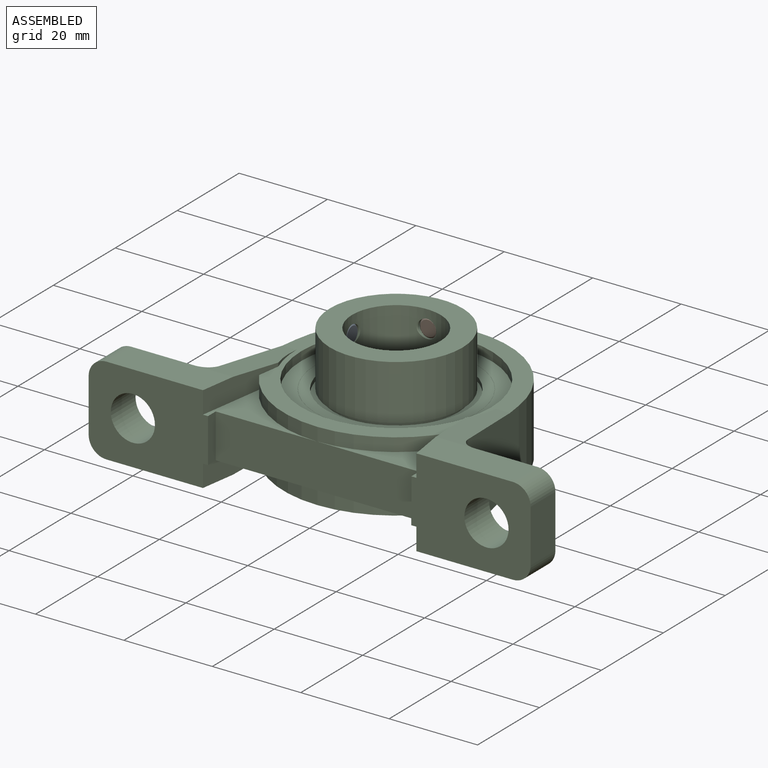
[diagram: assembled view]
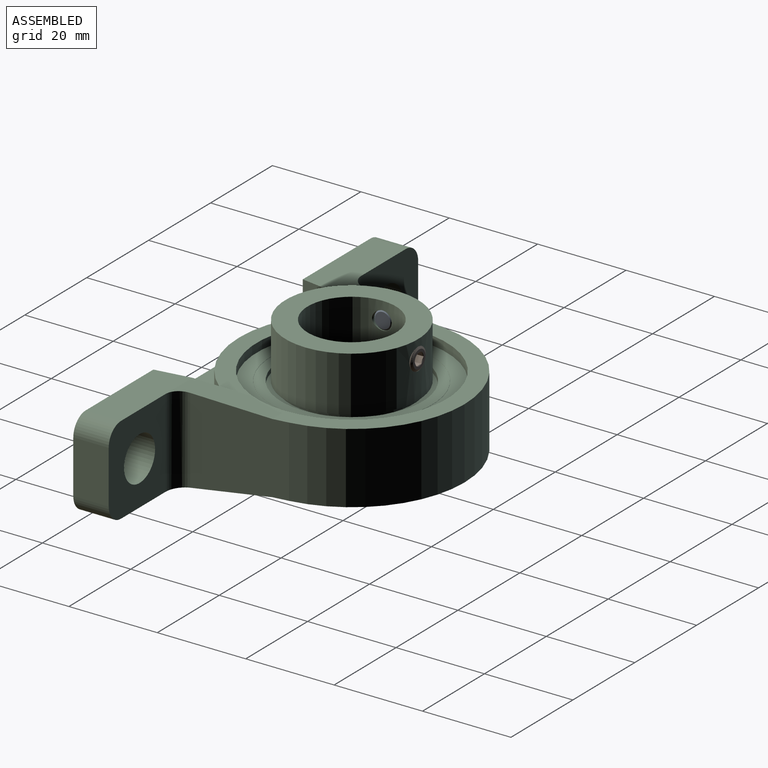
[diagram: assembled view, second angle]
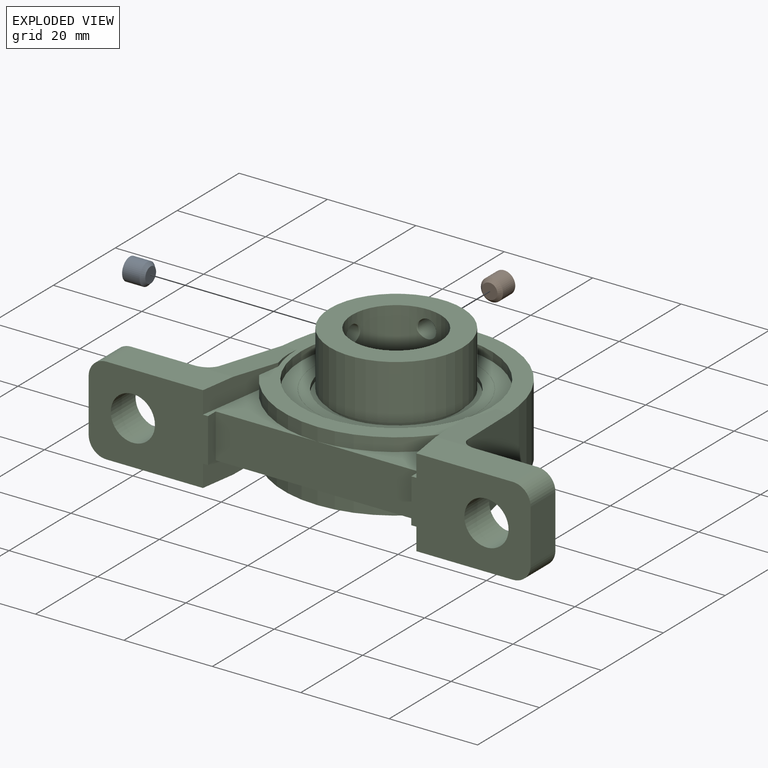
[diagram: exploded view]
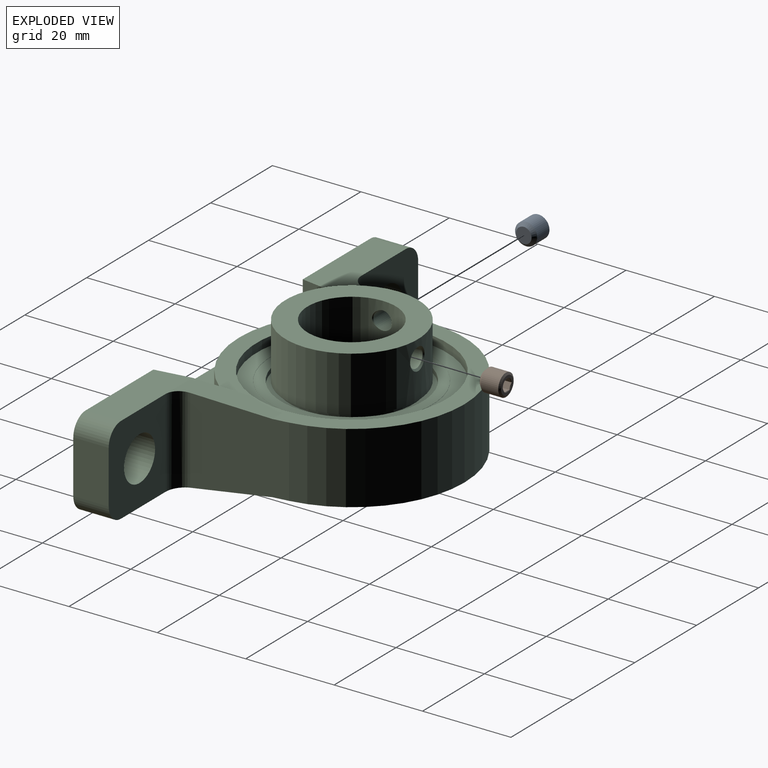
[diagram: exploded view, second angle]
ASSEMBLY  parts=3 mates=2
PART A: 18 faces, bbox 5.4x5.4x5.4 mm
  f0: cone r=1.44mm half-angle=60deg, axis (-1,0,0), area 0mm2, adj f10,f12
  f1: cone r=1.44mm half-angle=60deg, axis (-1,0,0), area 0mm2, adj f10,f11
  f2: cone r=1.44mm half-angle=60deg, axis (-1,0,0), area 0mm2, adj f10,f13
  f3: cone r=1.44mm half-angle=60deg, axis (-1,0,0), area 0mm2, adj f10,f14
  f4: cone r=1.44mm half-angle=60deg, axis (-1,0,0), area 0mm2, adj f10,f15
  f5: cone r=1.44mm half-angle=60deg, axis (-1,0,0), area 0mm2, adj f10,f16
  f6: plane 3.5x3.5mm, normal (1,0,0), area 9.6mm2, adj f7
  f7: cone r=1.75mm half-angle=45deg, axis (-1,0,0), area 14.2mm2, adj f6,f8
  f8: cylinder r=2.5mm len=5mm, axis (-1,0,0), area 62.3mm2, adj f7,f9
  f9: cone r=2.5mm half-angle=60deg, axis (1,0,0), area 8mm2, adj f8,f10
  f10: plane 4.02x4.02mm, normal (-1,0,0), area 6.1mm2, adj f0,f1,f2,f3,f4,f5,f9
  f11: plane 2.45x1.7mm, normal (0,-0.5,-0.87), area 2.8mm2, adj f1,f12,f16,f17
  f12: plane 2.45x1.7mm, normal (0,0.5,-0.87), area 2.8mm2, adj f0,f11,f13,f17
  f13: plane 2.45x1.89mm, normal (0,1,0), area 2.8mm2, adj f2,f12,f14,f17
  f14: plane 2.45x1.7mm, normal (0,0.5,0.87), area 2.8mm2, adj f3,f13,f15,f17
  f15: plane 2.45x1.7mm, normal (0,-0.5,0.87), area 2.8mm2, adj f4,f14,f16,f17
  f16: plane 2.45x1.89mm, normal (0,-1,0), area 2.8mm2, adj f5,f11,f15,f17
  f17: plane 2.89x2.5mm, normal (-1,0,0), area 5.4mm2, adj f11,f12,f13,f14,f15,f16
PART B: same geometry as A
PART C: 69 faces, bbox 100x53.5x28.5 mm
  f0: cylinder r=10mm len=24.5mm, axis (0,0,-1), area 1510.5mm2, adj f38,f39,f61,f63,f64,f65,f66,f67
  f1: cylinder r=15mm len=30mm, axis (0,0,-1), area 1141.6mm2, adj f38,f52,f62,f68
  f2: plane 51.48x51mm, normal (0,0,-1), area 526.8mm2, adj f9,f10,f22,f23,f27,f28,f29,f30
  f3: plane 27x20mm, normal (0,-1,0), area 443.2mm2, adj f4,f14,f17,f19,f25,f27,f35,f36
  f4: plane 10x2.5mm, normal (1,0,0), area 25mm2, adj f3,f5,f53,f56
  f5: plane 46x10mm, normal (0,-1,0), area 460mm2, adj f4,f6,f53,f54,f56,f57
  f6: plane 10x2.5mm, normal (-1,0,0), area 25mm2, adj f5,f7,f54,f57
  f7: plane 27x20mm, normal (0,-1,0), area 443.2mm2, adj f6,f12,f15,f16,f26,f28,f33,f34
  f8: plane 51.48x51mm, normal (0,0,1), area 526.8mm2, adj f11,f18,f22,f23,f25,f26,f31,f32
  f9: cylinder r=22.58mm len=7.95mm, axis (0,0,-1), area 3.2mm2, adj f2,f28,f29
  f10: cylinder r=22.58mm len=7.95mm, axis (0,0,-1), area 3.2mm2, adj f2,f27,f30
  f11: cylinder r=22.58mm len=7.95mm, axis (0,0,-1), area 3.2mm2, adj f8,f25,f32
  f12: plane 23.06x8mm, normal (0,0,1), area 179.7mm2, adj f7,f20,f26,f31,f34
  f13: plane 20x18.4mm, normal (0,1,0), area 282.5mm2, adj f14,f17,f19,f24,f35,f36,f59
  f14: plane 12x8mm, normal (-1,0,0), area 96mm2, adj f3,f13,f35,f36
  f15: plane 12x8mm, normal (1,0,0), area 96mm2, adj f7,f20,f33,f34
  f16: plane 23.06x8mm, normal (0,0,-1), area 179.7mm2, adj f7,f20,f28,f29,f33
  f17: plane 23.06x8mm, normal (0,0,-1), area 179.7mm2, adj f3,f13,f27,f30,f36
  f18: cylinder r=22.58mm len=7.95mm, axis (0,0,-1), area 3.2mm2, adj f8,f26,f31
  f19: plane 23.06x8mm, normal (0,0,1), area 179.7mm2, adj f3,f13,f25,f32,f35
  f20: plane 20x18.4mm, normal (0,1,0), area 282.5mm2, adj f12,f15,f16,f21,f33,f34,f60
  f21: cylinder r=3.56mm len=20mm, axis (0,0,-1), area 101mm2, adj f20,f22,f29,f31
  f22: plane 20.41x19.39mm, normal (0.99,0.14,0), area 358.5mm2, adj f2,f8,f21,f29,f31,f37
  f23: plane 20.41x19.39mm, normal (-0.99,0.14,0), area 358.5mm2, adj f2,f8,f24,f30,f32,f37
  f24: cylinder r=3.56mm len=20mm, axis (0,0,-1), area 101mm2, adj f13,f23,f30,f32
  f25: plane 20.05x5mm, normal (0.99,-0.15,0), area 78.5mm2, adj f3,f8,f11,f19,f32,f53,f55
  f26: plane 20.05x5mm, normal (-0.99,-0.15,0), area 78.5mm2, adj f7,f8,f12,f18,f31,f54,f55
  f27: plane 20.05x5mm, normal (0.99,-0.15,0), area 78.5mm2, adj f2,f3,f10,f17,f30,f56,f58
  f28: plane 20.05x5mm, normal (-0.99,-0.15,0), area 78.5mm2, adj f2,f7,f9,f16,f29,f57,f58
  f29: plane 20.01x10.49mm, normal (0,0.1,-1), area 103.7mm2, adj f2,f9,f16,f21,f22,f28
  f30: plane 20.01x10.49mm, normal (0,0.1,-1), area 103.7mm2, adj f2,f10,f17,f23,f24,f27
  f31: plane 20.01x10.49mm, normal (0,0.1,1), area 103.7mm2, adj f8,f12,f18,f21,f22,f26
  f32: plane 20.01x10.49mm, normal (0,0.1,1), area 103.7mm2, adj f8,f11,f19,f23,f24,f25
  f33: cylinder r=4mm len=8mm, axis (0,-1,0), area 50.3mm2, adj f7,f15,f16,f20
  f34: cylinder r=4mm len=8mm, axis (0,-1,0), area 50.3mm2, adj f7,f12,f15,f20
  f35: cylinder r=4mm len=8mm, axis (0,-1,0), area 50.3mm2, adj f3,f13,f14,f19
  f36: cylinder r=4mm len=8mm, axis (0,-1,0), area 50.3mm2, adj f3,f13,f14,f17
  f37: cylinder r=25.5mm len=50.52mm, axis (0,0,-1), area 1169.9mm2, adj f2,f8,f22,f23
  f38: plane 30x30mm, normal (0,0,1), area 392.7mm2, adj f0,f1
  f39: plane 27.9x27.9mm, normal (0,0,-1), area 297.2mm2, adj f0,f40
  f40: torus R=14mm, axis (0,0,-1), area 13.8mm2, adj f39,f41
  f41: plane 36.45x36.45mm, normal (0,0,-1), area 423.3mm2, adj f40,f42
  f42: torus R=18.27mm, axis (0,0,-1), area 18mm2, adj f41,f43
  f43: plane 43x43mm, normal (0,0,-1), area 397.2mm2, adj f42,f44
  f44: cylinder r=21.5mm len=43mm, axis (0,0,-1), area 270.2mm2, adj f2,f43
  f45: cylinder r=21.5mm len=43mm, axis (0,0,-1), area 270.2mm2, adj f8,f46
  f46: plane 43x43mm, normal (0,0,1), area 397.2mm2, adj f45,f47
  f47: torus R=18.27mm, axis (0,0,-1), area 18mm2, adj f46,f48
  f48: plane 36.45x36.45mm, normal (0,0,1), area 239.2mm2, adj f47,f49
  f49: cylinder r=16mm len=32mm, axis (0,0,-1), area 100.5mm2, adj f48,f50
  f50: plane 32x32mm, normal (0,0,1), area 188.5mm2, adj f49,f51
  f51: cylinder r=14mm len=28mm, axis (0,0,-1), area 88mm2, adj f50,f52
  f52: plane 30x30mm, normal (0,0,-1), area 91.1mm2, adj f1,f51
  f53: plane 24.14x14.93mm, normal (0,0,1), area 93.5mm2, adj f3,f4,f5,f25,f55
  f54: plane 24.14x14.93mm, normal (0,0,1), area 93.5mm2, adj f5,f6,f7,f26,f55
  f55: cylinder r=25.5mm len=43.8mm, axis (0,0,-1), area 158mm2, adj f8,f25,f26,f53,f54
  f56: plane 24.14x14.93mm, normal (0,0,-1), area 93.5mm2, adj f3,f4,f5,f27,f58
  f57: plane 24.14x14.93mm, normal (0,0,-1), area 93.5mm2, adj f5,f6,f7,f28,f58
  f58: cylinder r=25.5mm len=43.8mm, axis (0,0,1), area 158mm2, adj f2,f27,f28,f56,f57
  f59: cylinder r=5mm len=10mm, axis (0,-1,0), area 251.3mm2, adj f3,f13
  f60: cylinder r=5mm len=10mm, axis (0,-1,0), area 251.3mm2, adj f7,f20
  f61: cone r=2.07mm half-angle=45deg, axis (0,-1,0), area 0.7mm2, adj f0,f63
  f62: cone r=2.5mm half-angle=45deg, axis (0,1,0), area 6.8mm2, adj f1,f63
  f63: cylinder r=2.07mm len=4.63mm, axis (0,-1,0), area 60mm2, adj f0,f61,f62,f64
  f64: cone r=2.07mm half-angle=45deg, axis (0,-1,0), area 0.7mm2, adj f0,f63
  f65: cone r=2.5mm half-angle=45deg, axis (1,0,0), area 0.7mm2, adj f0,f67
  f66: cone r=2.5mm half-angle=45deg, axis (1,0,0), area 0.7mm2, adj f0,f67
  f67: cylinder r=2.07mm len=4.63mm, axis (-1,0,0), area 60mm2, adj f0,f65,f66,f68
  f68: cone r=2.07mm half-angle=45deg, axis (-1,0,0), area 6.8mm2, adj f1,f67
PLACE A t=(-14.97,28,14.47)mm
PLACE B rot(axis=(0.58,-0.58,-0.58),120deg) t=(0,43.25,14.47)mm
PLACE C at identity
MATE fastened B.f8 <-> C.f61  axis (0,1,0) through (0,42.97,14.47)mm
MATE fastened A.f8 <-> C.f65  axis (-1,0,0) through (-14.97,28,14.47)mm
